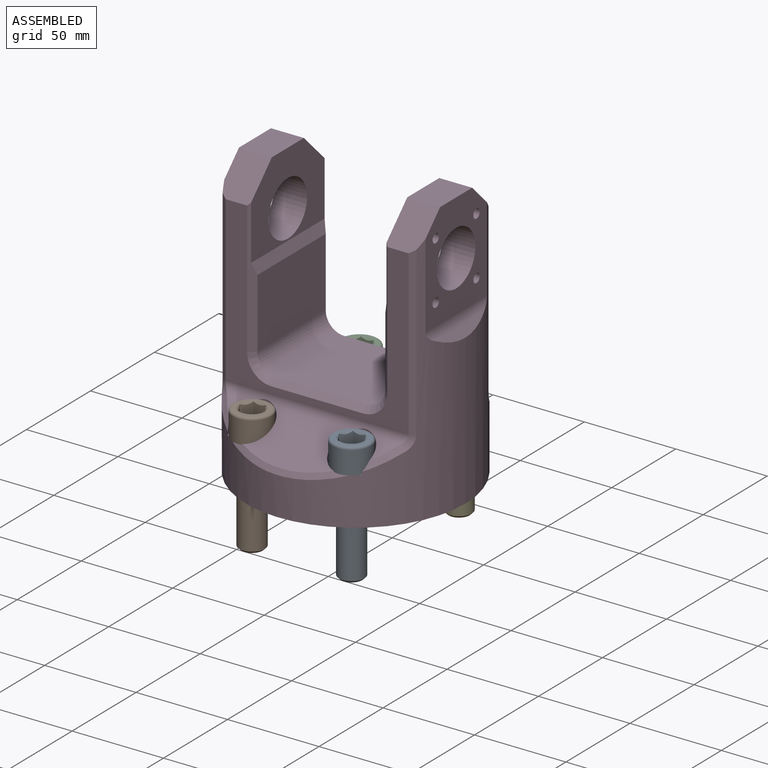
[diagram: assembled view]
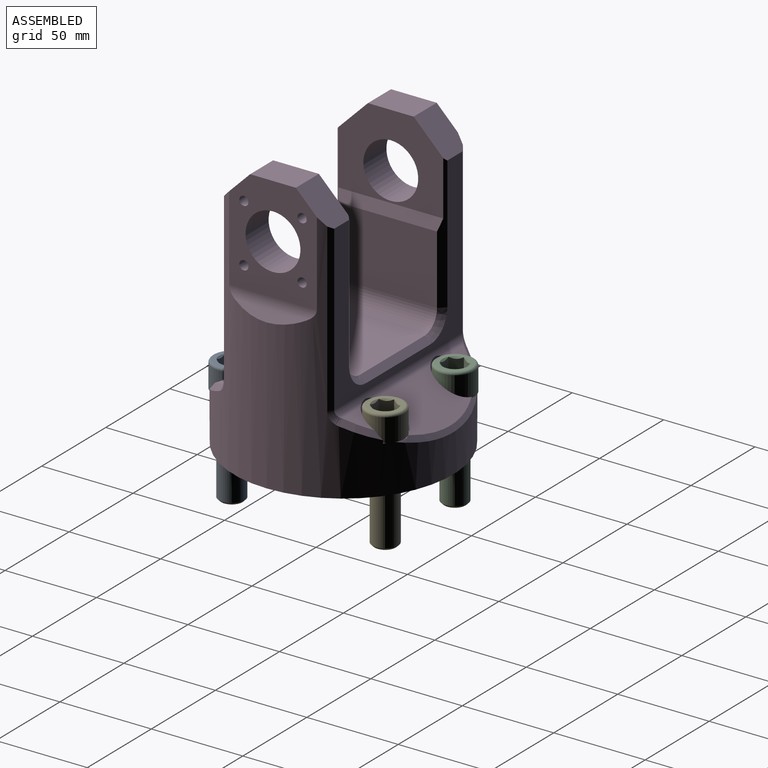
[diagram: assembled view, second angle]
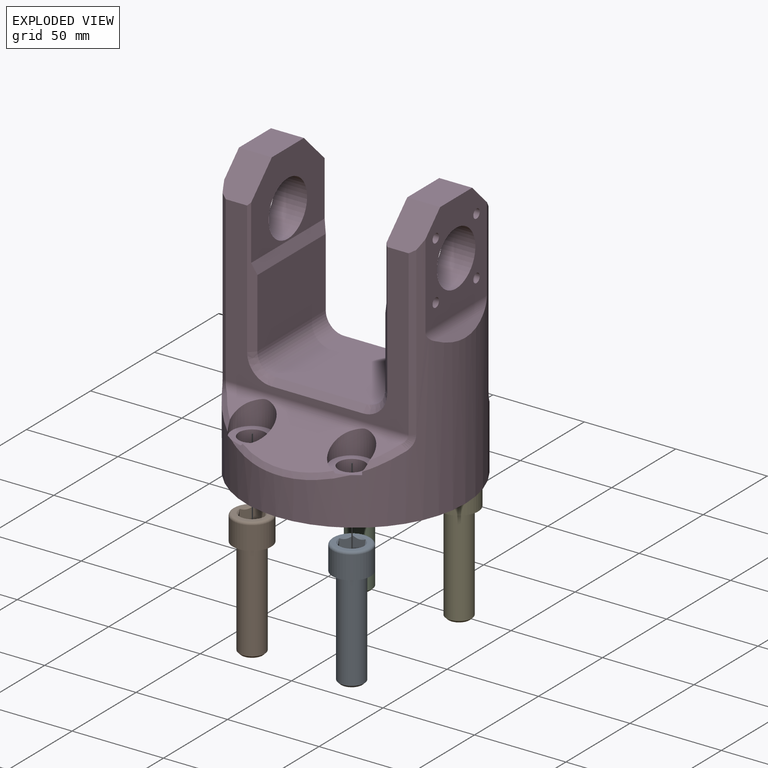
[diagram: exploded view]
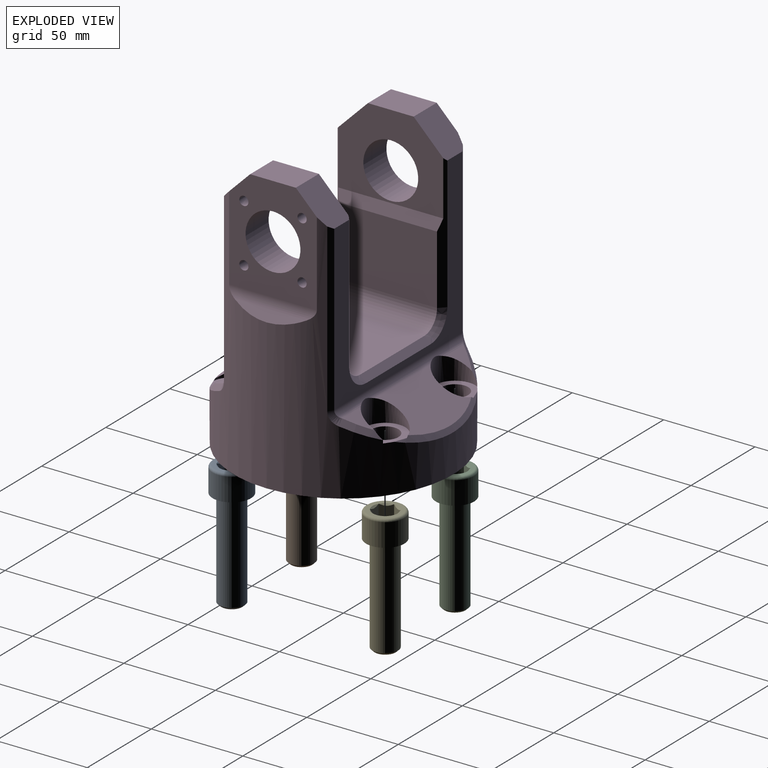
[diagram: exploded view, second angle]
ASSEMBLY  parts=5 mates=4
PART A: 29 faces, bbox 22.7x22.7x69 mm
  f0: cone r=3mm half-angle=60deg, axis (0,0,1), area 130.6mm2, adj f13,f14,f15,f16,f17,f18
  f1: torus R=9.1mm, axis (0,0,1), area 138.1mm2, adj f2,f25
  f2: cylinder r=10.5mm len=21mm, axis (0,0,1), area 831.3mm2, adj f1,f27
  f3: torus R=7.85mm, axis (0,0,1), area 36.4mm2, adj f4,f27
  f4: cone r=7.15mm half-angle=16.4deg, axis (0,0,1), area 39.8mm2, adj f3,f5
  f5: torus R=7.6mm, axis (0,0,1), area 7.6mm2, adj f4,f6
  f6: cylinder r=7mm len=52.32mm, axis (0,0,1), area 2301.3mm2, adj f5,f7
  f7: cone r=6.39mm half-angle=45deg, axis (0,0,1), area 69.6mm2, adj f6,f26
  f8: plane 8.2x6mm, normal (0.87,-0.5,0), area 52.9mm2, adj f9,f10,f15,f16,f25,f28
  f9: plane 8.2x6.93mm, normal (0,-1,0), area 52.9mm2, adj f8,f11,f14,f15,f24,f25
  f10: plane 8.2x6mm, normal (0.87,0.5,0), area 52.9mm2, adj f8,f12,f16,f17,f23,f25
  f11: plane 8.2x6mm, normal (-0.87,-0.5,0), area 52.9mm2, adj f9,f13,f14,f19,f22,f25
  f12: plane 8.2x6.93mm, normal (0,1,0), area 52.9mm2, adj f10,f17,f18,f19,f21,f25
  f13: plane 6x1.73mm, normal (0,0,1), area 1.9mm2, adj f0,f11,f19
  f14: plane 5.2x3mm, normal (0,0,1), area 1.9mm2, adj f0,f9,f11
  f15: plane 5.2x3mm, normal (0,0,1), area 1.9mm2, adj f0,f8,f9
  f16: plane 6x1.73mm, normal (0,0,1), area 1.9mm2, adj f0,f8,f10
  f17: plane 5.2x3mm, normal (0,0,1), area 1.9mm2, adj f0,f10,f12
  f18: plane 5.2x3mm, normal (0,0,1), area 1.9mm2, adj f0,f12,f19
  f19: plane 8.2x6mm, normal (-0.87,0.5,0), area 52.9mm2, adj f11,f12,f13,f18,f20,f25
  f20: cone r=6.44mm half-angle=45deg, axis (0,0,1), area 5.7mm2, adj f19,f25
  f21: cone r=6.44mm half-angle=45deg, axis (0,0,1), area 5.7mm2, adj f12,f25
  f22: cone r=6.44mm half-angle=45deg, axis (0,0,1), area 5.7mm2, adj f11,f25
  f23: cone r=6.44mm half-angle=45deg, axis (0,0,1), area 5.7mm2, adj f10,f25
  f24: cone r=6.44mm half-angle=45deg, axis (0,0,1), area 5.7mm2, adj f9,f25
  f25: plane 18.2x18.2mm, normal (0,0,1), area 111.1mm2, adj f1,f8,f9,f10,f11,f12,f19,f20
  f26: plane 11.55x11.55mm, normal (0,0,-1), area 104.7mm2, adj f7
  f27: plane 21x21mm, normal (0,0,-1), area 152.8mm2, adj f2,f3
  f28: cone r=6.44mm half-angle=45deg, axis (0,0,1), area 5.7mm2, adj f8,f25
PART B: same geometry as A
PART C: same geometry as A
PART D: 87 faces, bbox 121x121x151 mm
  f0: cylinder r=2.5mm len=15mm, axis (1,0,0), area 235.6mm2, adj f1,f46
  f1: cone r=0mm half-angle=59deg, axis (1,0,0), area 22.9mm2, adj f0
  f2: cylinder r=2.5mm len=15mm, axis (1,0,0), area 235.6mm2, adj f3,f46
  f3: cone r=0mm half-angle=59deg, axis (1,0,0), area 22.9mm2, adj f2
  f4: cylinder r=2.5mm len=15mm, axis (1,0,0), area 235.6mm2, adj f5,f46
  f5: cone r=0mm half-angle=59deg, axis (1,0,0), area 22.9mm2, adj f4
  f6: cylinder r=2.5mm len=15mm, axis (1,0,0), area 235.6mm2, adj f7,f46
  f7: cone r=0mm half-angle=59deg, axis (1,0,0), area 22.9mm2, adj f6
  f8: plane 15.64x12.28mm, normal (0,0.5,0.87), area 81.7mm2, adj f15,f16,f73
  f9: plane 49.94x25.87mm, normal (0,0.5,0.87), area 1063mm2, adj f15,f17,f71,f73
  f10: plane 15.64x12.28mm, normal (0,0.5,0.87), area 81.7mm2, adj f15,f18,f71
  f11: plane 49.94x25.87mm, normal (0,-0.5,0.87), area 1063mm2, adj f14,f20,f76,f78
  f12: plane 15.64x12.28mm, normal (0,-0.5,0.87), area 81.7mm2, adj f14,f19,f78
  f13: cylinder r=60mm len=138.52mm, axis (0,0,-1), area 17903.7mm2, adj f16,f17,f18,f19,f20,f21,f23,f24
  f14: cylinder r=5mm len=100.04mm, axis (-1,0,0), area 479.6mm2, adj f11,f12,f22,f28,f64,f65,f76,f78
  f15: cylinder r=5mm len=100.04mm, axis (-1,0,0), area 479.6mm2, adj f8,f9,f10,f31,f55,f56,f71,f73
  f16: bspline ~15.59x14.91mm, area 71.9mm2, adj f8,f13,f56,f73
  f17: bspline ~65.04x10.7mm, area 197.3mm2, adj f9,f13,f71,f72,f73,f74
  f18: bspline ~15.59x14.91mm, area 71.9mm2, adj f10,f13,f55,f71
  f19: bspline ~15.59x14.91mm, area 71.9mm2, adj f12,f13,f64,f78
  f20: bspline ~65.04x10.7mm, area 197.3mm2, adj f11,f13,f75,f76,f77,f78
  f21: bspline ~15.59x14.91mm, area 71.9mm2, adj f13,f22,f65,f76
  f22: plane 15.64x12.28mm, normal (0,-0.5,0.87), area 81.7mm2, adj f14,f21,f76
  f23: plane 120x120mm, normal (0,0,-1), area 10649.2mm2, adj f13,f67,f68,f69,f70
  f24: plane 18.04x17.54mm, normal (0,-0.71,0.71), area 429.5mm2, adj f13,f26,f28,f40,f46,f62,f66
  f25: plane 25x18mm, normal (0,0,1), area 450mm2, adj f29,f30,f32,f43
  f26: plane 25x18mm, normal (0,0,1), area 450mm2, adj f24,f27,f40,f46
  f27: plane 18.04x17.54mm, normal (0,0.71,0.71), area 429.5mm2, adj f13,f26,f31,f40,f46,f53,f57
  f28: plane 100.04x89.61mm, normal (0,-1,0), area 2468.4mm2, adj f14,f24,f29,f58,f59,f60,f61,f62
  f29: plane 18.04x17.54mm, normal (0,-0.71,0.71), area 429.5mm2, adj f13,f25,f28,f32,f43,f58,f63
  f30: plane 18.04x17.54mm, normal (0,0.71,0.71), area 429.5mm2, adj f13,f25,f31,f32,f43,f49,f54
  f31: plane 100.04x89.61mm, normal (0,1,0), area 2468.4mm2, adj f15,f27,f30,f49,f50,f51,f52,f53
  f32: plane 57.4x46mm, normal (1,0,0), area 1671.1mm2, adj f25,f29,f30,f33,f48,f49,f58
  f33: plane 57.4x6.25mm, normal (0.95,0,0.3), area 363.5mm2, adj f32,f34,f49,f58
  f34: plane 53.4x37.75mm, normal (1,0,0), area 2015.8mm2, adj f33,f35,f49,f58
  f35: cylinder r=10mm len=53.4mm, axis (0,-1,0), area 838.8mm2, adj f34,f36,f50,f59
  f36: plane 53.4x50mm, normal (0,0,1), area 2670mm2, adj f35,f37,f51,f60
  f37: cylinder r=10mm len=53.4mm, axis (0,-1,0), area 838.8mm2, adj f36,f38,f52,f61
  f38: plane 53.4x37.75mm, normal (-1,0,0), area 2015.8mm2, adj f37,f39,f53,f62
  f39: plane 57.4x6.25mm, normal (-0.95,0,0.3), area 363.5mm2, adj f38,f40,f53,f62
  f40: plane 57.4x46mm, normal (-1,0,0), area 1671.1mm2, adj f24,f26,f27,f39,f47,f53,f62
  f41: plane 39.43x5.02mm, normal (-0.83,0,0.55), area 159.3mm2, adj f13,f42
  f42: cylinder r=10mm len=47.96mm, axis (0,-1,0), area 256mm2, adj f13,f41,f43
  f43: plane 57.45x47.96mm, normal (-1,0,0), area 1838mm2, adj f13,f25,f29,f30,f42,f48,f79,f81
  f44: cylinder r=10mm len=47.96mm, axis (0,-1,0), area 256mm2, adj f13,f45,f46
  f45: plane 39.43x5.02mm, normal (0.83,0,0.55), area 159.3mm2, adj f13,f44
  f46: plane 57.45x47.96mm, normal (1,0,0), area 1838mm2, adj f0,f2,f4,f6,f13,f24,f26,f27
  f47: cylinder r=15mm len=30mm, axis (-1,0,0), area 1696.5mm2, adj f40,f46
  f48: cylinder r=15mm len=30mm, axis (-1,0,0), area 1696.5mm2, adj f32,f43
  f49: plane 73.8x3.3mm, normal (0.71,0.71,0), area 250.1mm2, adj f30,f31,f32,f33,f34,f50
  f50: cone r=10mm half-angle=45deg, axis (0,1,0), area 85.4mm2, adj f31,f35,f49,f51
  f51: plane 50x3.3mm, normal (0,0.71,0.71), area 233.4mm2, adj f31,f36,f50,f52
  f52: cone r=13.3mm half-angle=45deg, axis (0,1,0), area 85.4mm2, adj f31,f37,f51,f53
  f53: plane 73.8x3.3mm, normal (-0.71,0.71,0), area 250.1mm2, adj f27,f31,f38,f39,f40,f52
  f54: plane 91.36x2.91mm, normal (-0.51,0.86,0), area 307.2mm2, adj f13,f30,f31,f55
  f55: bspline ~7.19x5.36mm, area 27.3mm2, adj f13,f15,f18,f54
  f56: bspline ~7.19x5.36mm, area 27.3mm2, adj f13,f15,f16,f57
  f57: plane 91.36x2.91mm, normal (0.51,0.86,0), area 307.2mm2, adj f13,f27,f31,f56
  f58: plane 73.8x3.3mm, normal (0.71,-0.71,0), area 250.1mm2, adj f28,f29,f32,f33,f34,f59
  f59: cone r=13.3mm half-angle=45deg, axis (0,-1,0), area 85.4mm2, adj f28,f35,f58,f60
  f60: plane 50x3.3mm, normal (0,-0.71,0.71), area 233.4mm2, adj f28,f36,f59,f61
  f61: cone r=10mm half-angle=45deg, axis (0,-1,0), area 85.4mm2, adj f28,f37,f60,f62
  f62: plane 73.8x3.3mm, normal (-0.71,-0.71,0), area 250.1mm2, adj f24,f28,f38,f39,f40,f61
  f63: plane 91.36x2.91mm, normal (-0.51,-0.86,0), area 307.2mm2, adj f13,f28,f29,f64
  f64: bspline ~7.19x5.36mm, area 27.3mm2, adj f13,f14,f19,f63
  f65: bspline ~7.19x5.36mm, area 27.3mm2, adj f13,f14,f21,f66
  f66: plane 91.36x2.91mm, normal (0.51,-0.86,0), area 307.2mm2, adj f13,f24,f28,f65
  f67: cylinder r=7.25mm len=26mm, axis (0,0,-1), area 1184.4mm2, adj f23,f77
  f68: cylinder r=7.25mm len=26mm, axis (0,0,-1), area 1184.4mm2, adj f23,f75
  f69: cylinder r=7.25mm len=26mm, axis (0,0,-1), area 1184.4mm2, adj f23,f74
  f70: cylinder r=7.25mm len=26mm, axis (0,0,-1), area 1184.4mm2, adj f23,f72
  f71: cylinder r=11mm len=22mm, axis (0,0,-1), area 463mm2, adj f9,f10,f13,f15,f17,f18,f72
  f72: plane 22.13x22.05mm, normal (0,0,1), area 205.3mm2, adj f13,f17,f70,f71
  f73: cylinder r=11mm len=22mm, axis (0,0,-1), area 463mm2, adj f8,f9,f13,f15,f16,f17,f74
  f74: plane 22.13x22.05mm, normal (0,0,1), area 205.3mm2, adj f13,f17,f69,f73
  f75: plane 22.13x22.05mm, normal (0,0,1), area 205.3mm2, adj f13,f20,f68,f76
  f76: cylinder r=11mm len=22mm, axis (0,0,-1), area 463mm2, adj f11,f13,f14,f20,f21,f22,f75
  f77: plane 22.13x22.05mm, normal (0,0,1), area 205.3mm2, adj f13,f20,f67,f78
  f78: cylinder r=11mm len=22mm, axis (0,0,-1), area 463mm2, adj f11,f12,f13,f14,f19,f20,f77
  f79: cylinder r=2.5mm len=15mm, axis (-1,0,0), area 235.6mm2, adj f43,f80
  f80: cone r=0mm half-angle=59deg, axis (-1,0,0), area 22.9mm2, adj f79
  f81: cylinder r=2.5mm len=15mm, axis (-1,0,0), area 235.6mm2, adj f43,f82
  f82: cone r=0mm half-angle=59deg, axis (-1,0,0), area 22.9mm2, adj f81
  f83: cylinder r=2.5mm len=15mm, axis (-1,0,0), area 235.6mm2, adj f43,f84
  f84: cone r=0mm half-angle=59deg, axis (-1,0,0), area 22.9mm2, adj f83
  f85: cylinder r=2.5mm len=15mm, axis (-1,0,0), area 235.6mm2, adj f43,f86
  f86: cone r=0mm half-angle=59deg, axis (-1,0,0), area 22.9mm2, adj f85
PART E: same geometry as A
PLACE A at identity
PLACE B t=(-54.46,0,0)mm
PLACE C t=(-54.46,83.87,0)mm
PLACE D at identity fixed
PLACE E t=(0,83.87,0)mm
MATE fastened C.f0 <-> D.f70  axis (0,0,1) through (-27.23,41.93,-94)mm
MATE fastened B.f0 <-> D.f67  axis (0,0,1) through (-27.23,-41.93,-94)mm
MATE fastened E.f0 <-> D.f69  axis (0,0,-1) through (27.23,41.93,-94)mm
MATE fastened A.f0 <-> D.f68  axis (0,0,-1) through (27.23,-41.93,-94)mm
